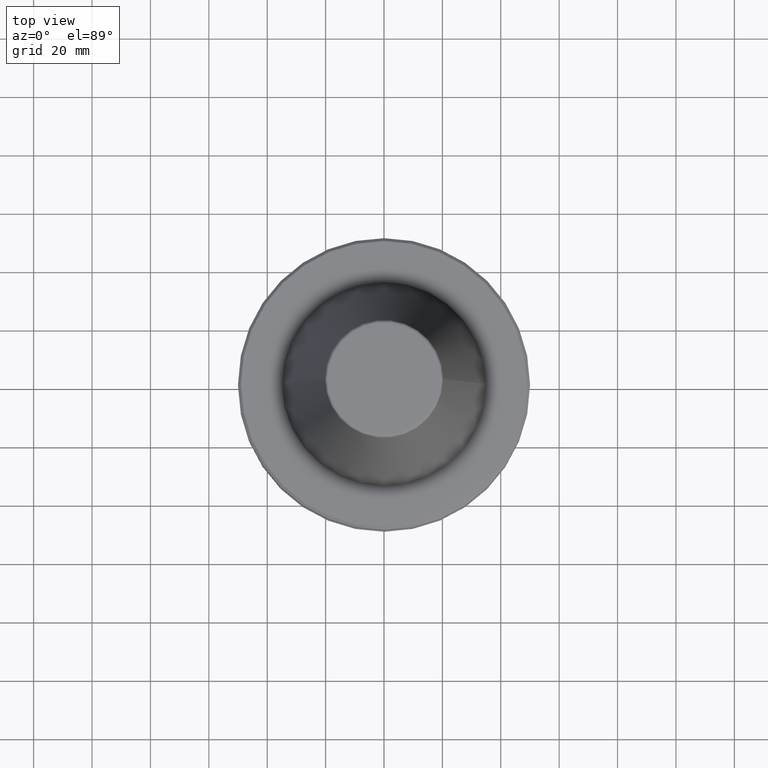
[diagram: clean part render]
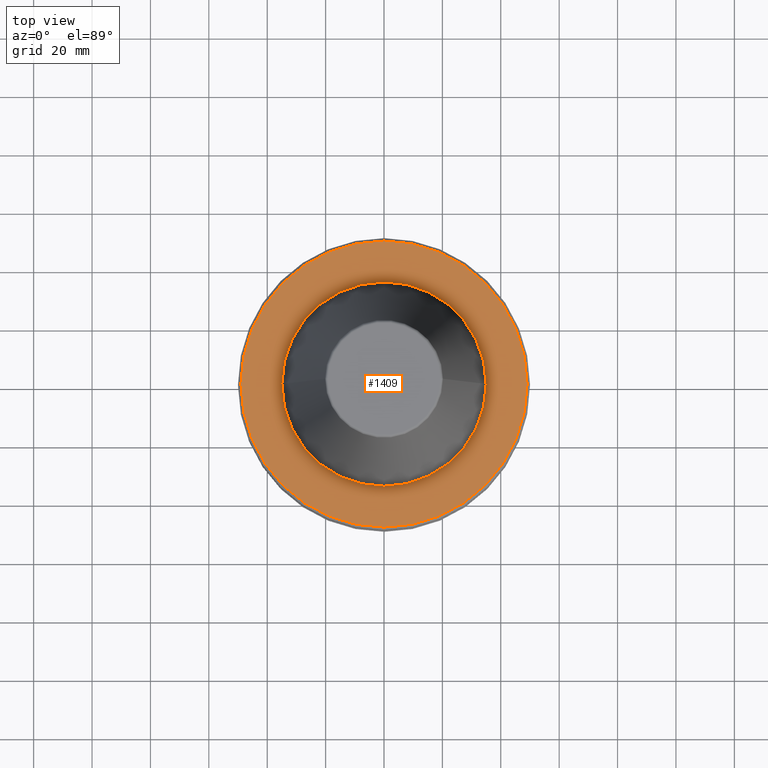
[diagram: same view with one face highlighted and labeled with its STEP entity id]
A machine part, top view. The second image highlights one B-rep face of the part: STEP entity #1409.
In plain terms, the highlighted planar face has unit normal (0, 0, -1).
Its self-contained STEP definition (entity closure, byte-faithful):
#94 = VERTEX_POINT ( 'NONE', #431 ) ;
#147 = VERTEX_POINT ( 'NONE', #681 ) ;
#157 = VERTEX_POINT ( 'NONE', #1467 ) ;
#221 = EDGE_CURVE ( 'NONE', #147, #1305, #1274, .T. ) ;
#287 = FACE_OUTER_BOUND ( 'NONE', #834, .T. ) ;
#288 = AXIS2_PLACEMENT_3D ( 'NONE', #1237, #463, #1367 ) ;
#300 = ORIENTED_EDGE ( 'NONE', *, *, #937, .F. ) ;
#382 = DIRECTION ( 'NONE',  ( -0.0000000000000000000, -0.0000000000000000000, 1.000000000000000000 ) ) ;
#431 = CARTESIAN_POINT ( 'NONE',  ( -48.99999999999992900, 0.0000000000000000000, -3.000000000001446000 ) ) ;
#439 = PLANE ( 'NONE',  #1170 ) ;
#455 = DIRECTION ( 'NONE',  ( 1.000000000000000000, 0.0000000000000000000, 0.0000000000000000000 ) ) ;
#463 = DIRECTION ( 'NONE',  ( -0.0000000000000000000, -0.0000000000000000000, 1.000000000000000000 ) ) ;
#465 = AXIS2_PLACEMENT_3D ( 'NONE', #514, #476, #455 ) ;
#476 = DIRECTION ( 'NONE',  ( -0.0000000000000000000, -0.0000000000000000000, 1.000000000000000000 ) ) ;
#514 = CARTESIAN_POINT ( 'NONE',  ( 0.0000000000000000000, 0.0000000000000000000, -3.000000000001446000 ) ) ;
#533 = CARTESIAN_POINT ( 'NONE',  ( 0.0000000000000000000, 0.0000000000000000000, -3.000000000001446000 ) ) ;
#539 = CARTESIAN_POINT ( 'NONE',  ( -34.99999999999970200, 4.286263797015698600E-015, -3.000000000001501500 ) ) ;
#560 = DIRECTION ( 'NONE',  ( 0.0000000000000000000, 0.0000000000000000000, -1.000000000000000000 ) ) ;
#565 = DIRECTION ( 'NONE',  ( -1.000000000000000000, 0.0000000000000000000, -0.0000000000000000000 ) ) ;
#649 = FACE_BOUND ( 'NONE', #853, .T. ) ;
#657 = DIRECTION ( 'NONE',  ( 1.000000000000000000, 0.0000000000000000000, 0.0000000000000000000 ) ) ;
#681 = CARTESIAN_POINT ( 'NONE',  ( 34.99999999999970200, 0.0000000000000000000, -3.000000000001501500 ) ) ;
#705 = ORIENTED_EDGE ( 'NONE', *, *, #1281, .T. ) ;
#766 = CIRCLE ( 'NONE', #1464, 48.99999999999992900 ) ;
#822 = DIRECTION ( 'NONE',  ( 1.000000000000000000, 0.0000000000000000000, 0.0000000000000000000 ) ) ;
#834 = EDGE_LOOP ( 'NONE', ( #1378, #705 ) ) ;
#853 = EDGE_LOOP ( 'NONE', ( #1078, #300 ) ) ;
#937 = EDGE_CURVE ( 'NONE', #1305, #147, #1536, .T. ) ;
#1078 = ORIENTED_EDGE ( 'NONE', *, *, #221, .F. ) ;
#1085 = CARTESIAN_POINT ( 'NONE',  ( 0.0000000000000000000, 0.0000000000000000000, -3.000000000001446000 ) ) ;
#1170 = AXIS2_PLACEMENT_3D ( 'NONE', #1085, #560, #565 ) ;
#1205 = CARTESIAN_POINT ( 'NONE',  ( 0.0000000000000000000, 0.0000000000000000000, -3.000000000001446000 ) ) ;
#1237 = CARTESIAN_POINT ( 'NONE',  ( 0.0000000000000000000, 0.0000000000000000000, -3.000000000001446000 ) ) ;
#1274 = CIRCLE ( 'NONE', #1415, 34.99999999999970200 ) ;
#1281 = EDGE_CURVE ( 'NONE', #157, #94, #766, .T. ) ;
#1305 = VERTEX_POINT ( 'NONE', #539 ) ;
#1367 = DIRECTION ( 'NONE',  ( 1.000000000000000000, 0.0000000000000000000, 0.0000000000000000000 ) ) ;
#1378 = ORIENTED_EDGE ( 'NONE', *, *, #1524, .T. ) ;
#1409 = ADVANCED_FACE ( 'NONE', ( #649, #287 ), #439, .F. ) ;
#1415 = AXIS2_PLACEMENT_3D ( 'NONE', #1205, #382, #822 ) ;
#1438 = DIRECTION ( 'NONE',  ( -0.0000000000000000000, -0.0000000000000000000, 1.000000000000000000 ) ) ;
#1464 = AXIS2_PLACEMENT_3D ( 'NONE', #533, #1438, #657 ) ;
#1467 = CARTESIAN_POINT ( 'NONE',  ( 48.99999999999992900, 6.062001655779396900E-015, -3.000000000001446000 ) ) ;
#1480 = CIRCLE ( 'NONE', #288, 48.99999999999992900 ) ;
#1524 = EDGE_CURVE ( 'NONE', #94, #157, #1480, .T. ) ;
#1536 = CIRCLE ( 'NONE', #465, 34.99999999999970200 ) ;